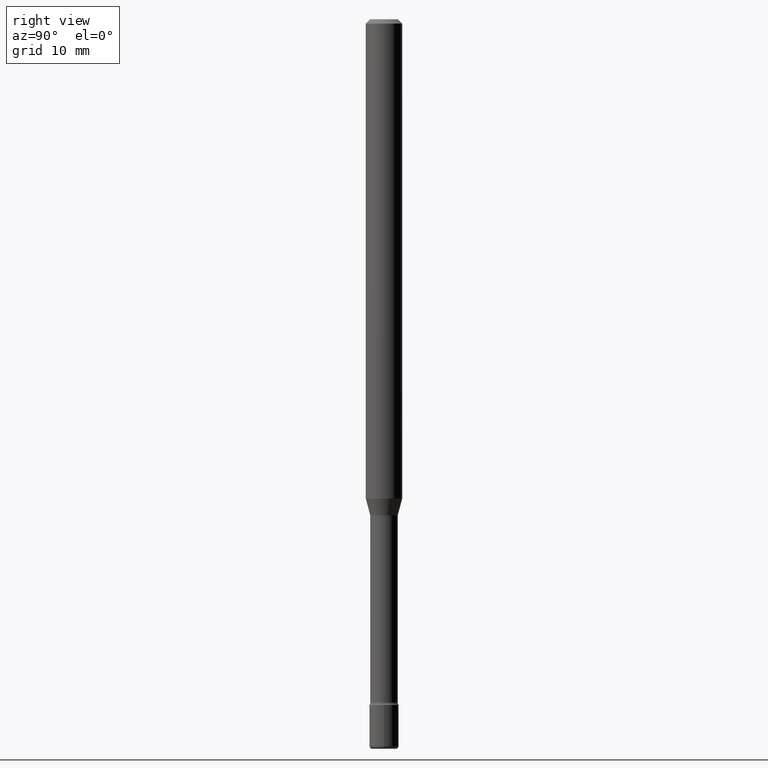
[diagram: clean part render]
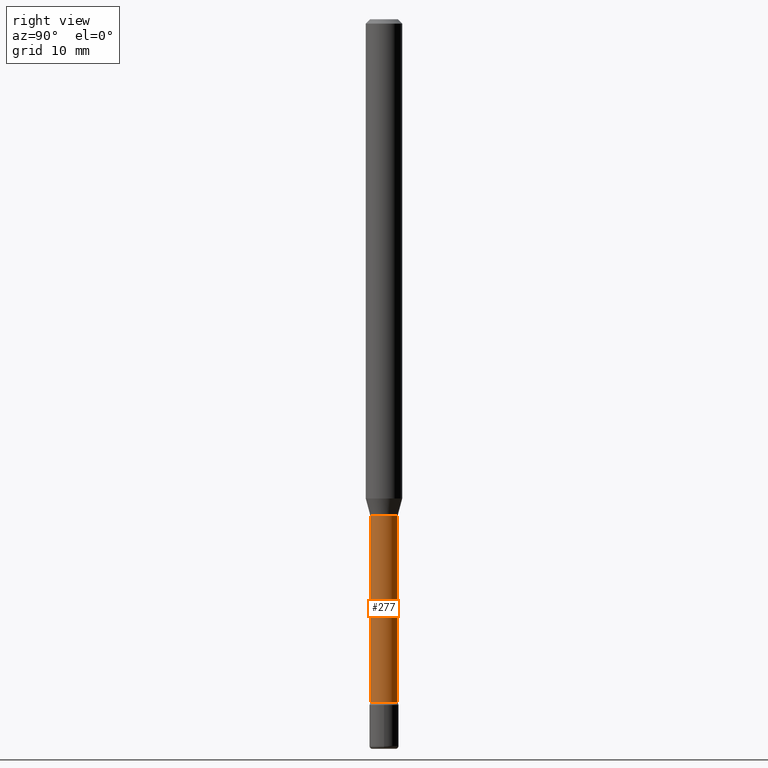
[diagram: same view with one face highlighted and labeled with its STEP entity id]
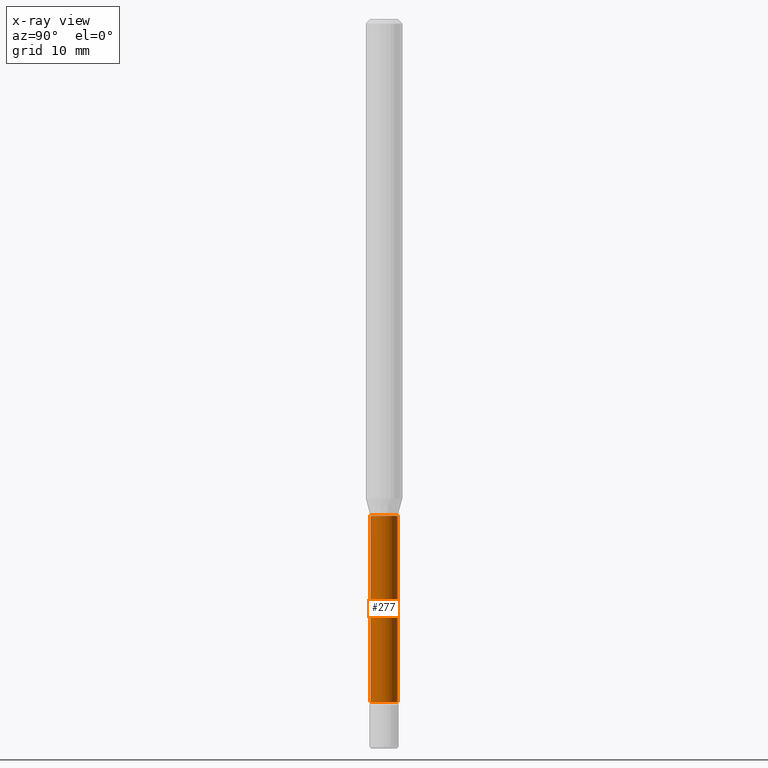
[diagram: x-ray of the same camera — body ghosted, the highlighted face saturated]
A machine part, right view. The second image highlights one B-rep face of the part: STEP entity #277.
The next image is the same camera in x-ray: the body ghosted, the highlighted face saturated — about 0% of this face is hidden behind the body in this view.
In plain terms, the highlighted cylindrical surface (edge-blend (fillet) strip) has radius 1.1938 mm, axis along (-0, 0, 1).
Its self-contained STEP definition (entity closure, byte-faithful):
#5 = EDGE_CURVE ( 'NONE', #120, #82, #421, .T. ) ;
#8 = DIRECTION ( 'NONE',  ( -2.445541428082492260E-29, 3.491377340152750324E-15, 1.000000000000000000 ) ) ;
#13 = DIRECTION ( 'NONE',  ( -2.445541428082492260E-29, 3.491377340152750324E-15, 1.000000000000000000 ) ) ;
#28 = CARTESIAN_POINT ( 'NONE',  ( 3.339550858073043792E-16, 0.04699999999999405348, -1.701974787463811145 ) ) ;
#30 = EDGE_LOOP ( 'NONE', ( #351, #491, #84, #506 ) ) ;
#36 = EDGE_CURVE ( 'NONE', #134, #82, #468, .T. ) ;
#42 = CARTESIAN_POINT ( 'NONE',  ( 3.339550858072470388E-16, 0.04700000000000000705, 3.139786639040668225E-16 ) ) ;
#48 = CARTESIAN_POINT ( 'NONE',  ( -3.281992458511972621E-16, -0.04700000000000817413, -2.340999999999999748 ) ) ;
#52 = VERTEX_POINT ( 'NONE', #48 ) ;
#65 = AXIS2_PLACEMENT_3D ( 'NONE', #415, #234, #155 ) ;
#75 = AXIS2_PLACEMENT_3D ( 'NONE', #542, #8, #358 ) ;
#82 = VERTEX_POINT ( 'NONE', #28 ) ;
#84 = ORIENTED_EDGE ( 'NONE', *, *, #5, .F. ) ;
#106 = DIRECTION ( 'NONE',  ( -6.982962677686266711E-15, -1.000000000000000000, 5.812442539711199378E-15 ) ) ;
#120 = VERTEX_POINT ( 'NONE', #354 ) ;
#125 = DIRECTION ( 'NONE',  ( -2.445541428082492260E-29, 3.491377340152750324E-15, 1.000000000000000000 ) ) ;
#127 = CARTESIAN_POINT ( 'NONE',  ( -3.281992458512545531E-16, -0.04700000000000000705, 6.421681338784253533E-16 ) ) ;
#134 = VERTEX_POINT ( 'NONE', #444 ) ;
#148 = VECTOR ( 'NONE', #125, 39.37007874015748143 ) ;
#155 = DIRECTION ( 'NONE',  ( -6.982962677686265922E-15, -1.000000000000000000, 3.491377340152749929E-15 ) ) ;
#201 = EDGE_CURVE ( 'NONE', #52, #134, #203, .T. ) ;
#203 = CIRCLE ( 'NONE', #75, 0.04700000000000000705 ) ;
#219 = FACE_OUTER_BOUND ( 'NONE', #30, .T. ) ;
#234 = DIRECTION ( 'NONE',  ( -2.445541428082492260E-29, 3.491377340152750324E-15, 1.000000000000000000 ) ) ;
#277 = ADVANCED_FACE ( 'NONE', ( #219 ), #424, .T. ) ;
#351 = ORIENTED_EDGE ( 'NONE', *, *, #201, .T. ) ;
#354 = CARTESIAN_POINT ( 'NONE',  ( -3.281992458512128914E-16, -0.04700000000000593980, -1.701974787463810701 ) ) ;
#358 = DIRECTION ( 'NONE',  ( -6.982962677686265922E-15, -1.000000000000000000, 5.812442539711197800E-15 ) ) ;
#360 = VECTOR ( 'NONE', #13, 39.37007874015748143 ) ;
#385 = EDGE_CURVE ( 'NONE', #52, #120, #402, .T. ) ;
#388 = AXIS2_PLACEMENT_3D ( 'NONE', #500, #413, #106 ) ;
#402 = LINE ( 'NONE', #127, #148 ) ;
#413 = DIRECTION ( 'NONE',  ( -2.445541428082492260E-29, 3.491377340152750324E-15, 1.000000000000000000 ) ) ;
#415 = CARTESIAN_POINT ( 'NONE',  ( -1.169113584055446105E-44, 1.669184350826100908E-30, 4.780733988912460139E-16 ) ) ;
#421 = CIRCLE ( 'NONE', #388, 0.04699999999999999317 ) ;
#424 = CYLINDRICAL_SURFACE ( 'NONE', #65, 0.04700000000000000705 ) ;
#444 = CARTESIAN_POINT ( 'NONE',  ( 3.446132268437060393E-16, 0.04699999999999183303, -2.341000000000000192 ) ) ;
#468 = LINE ( 'NONE', #42, #360 ) ;
#491 = ORIENTED_EDGE ( 'NONE', *, *, #36, .T. ) ;
#500 = CARTESIAN_POINT ( 'NONE',  ( 4.162249852294645006E-29, -5.942236206462443190E-15, -1.701974787463810923 ) ) ;
#506 = ORIENTED_EDGE ( 'NONE', *, *, #385, .F. ) ;
#542 = CARTESIAN_POINT ( 'NONE',  ( 5.725012483141114982E-29, -8.173314353297587961E-15, -2.341000000000000192 ) ) ;